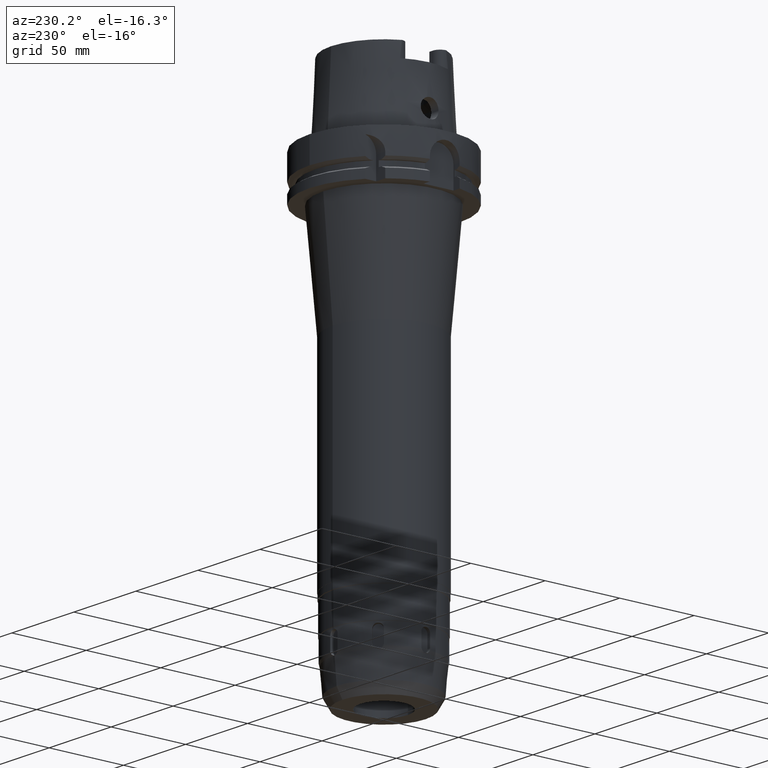
[diagram: clean part render]
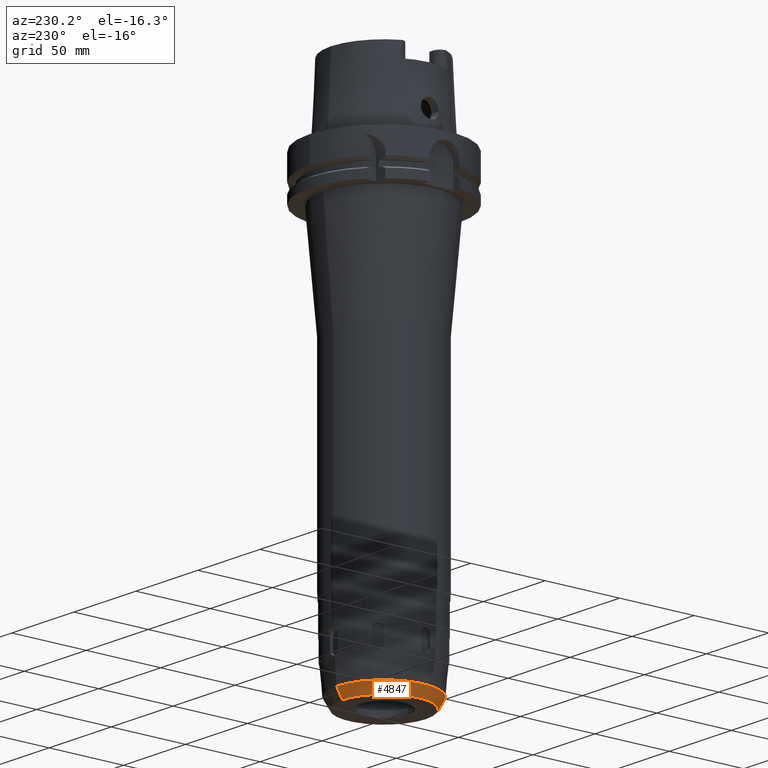
[diagram: same view with one face highlighted and labeled with its STEP entity id]
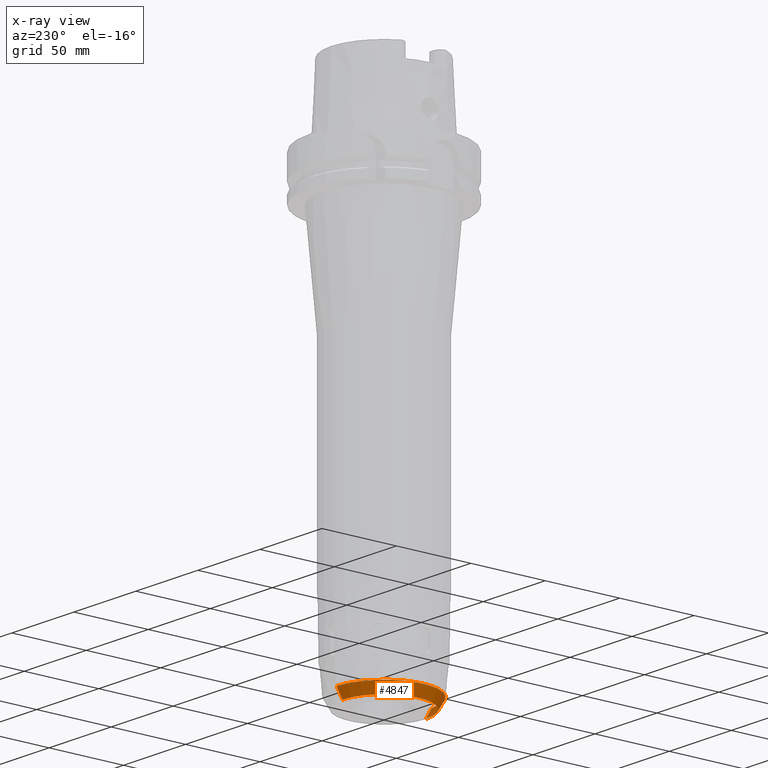
[diagram: x-ray of the same camera — body ghosted, the highlighted face saturated]
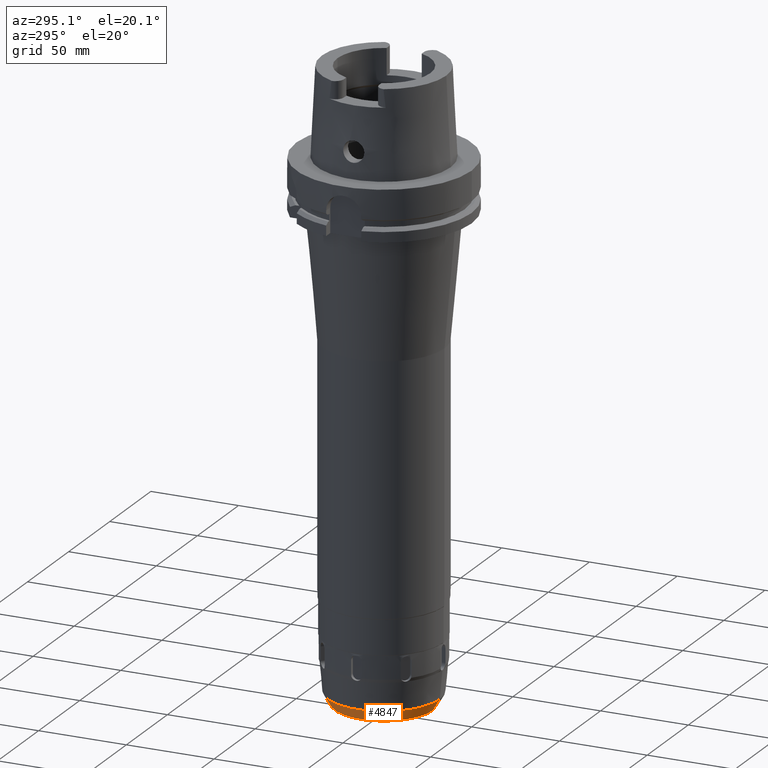
[diagram: same view with one face highlighted and labeled with its STEP entity id]
A machine part, auxiliary view. The second image highlights one B-rep face of the part: STEP entity #4847.
The next image is the same camera in x-ray: the body ghosted, the highlighted face saturated — about 0% of this face is hidden behind the body in this view.
A second angle (auxiliary view) of the same face is appended — the face is thin or edge-on in the first view.
In plain terms, the highlighted conical surface has half-angle 30 deg.
Its self-contained STEP definition (entity closure, byte-faithful):
#1039=CARTESIAN_POINT('',(0.E0,0.E0,-3.E2));
#1040=DIRECTION('',(0.E0,0.E0,1.E0));
#1041=DIRECTION('',(0.E0,1.E0,0.E0));
#1042=AXIS2_PLACEMENT_3D('',#1039,#1040,#1041);
#1063=DIRECTION('',(0.E0,-5.000000000002E-1,-8.660254037843E-1));
#1064=VECTOR('',#1063,7.667211574839E0);
#1065=CARTESIAN_POINT('',(0.E0,3.183360578742E1,-2.9336E2));
#1066=LINE('',#1065,#1064);
#1078=DIRECTION('',(0.E0,5.000000000002E-1,-8.660254037843E-1));
#1079=VECTOR('',#1078,7.667211574839E0);
#1080=CARTESIAN_POINT('',(0.E0,-3.183360578742E1,-2.9336E2));
#1081=LINE('',#1080,#1079);
#1092=CARTESIAN_POINT('',(0.E0,0.E0,-2.9336E2));
#1093=DIRECTION('',(0.E0,0.E0,-1.E0));
#1094=DIRECTION('',(0.E0,-1.E0,0.E0));
#1095=AXIS2_PLACEMENT_3D('',#1092,#1093,#1094);
#3699=CARTESIAN_POINT('',(0.E0,-2.8E1,-3.E2));
#3700=CARTESIAN_POINT('',(0.E0,2.8E1,-3.E2));
#3701=VERTEX_POINT('',#3699);
#3702=VERTEX_POINT('',#3700);
#3703=CARTESIAN_POINT('',(0.E0,3.183360578742E1,-2.9336E2));
#3704=VERTEX_POINT('',#3703);
#3705=CARTESIAN_POINT('',(0.E0,-3.183360578742E1,-2.9336E2));
#3706=VERTEX_POINT('',#3705);
#4835=CARTESIAN_POINT('',(0.E0,0.E0,-2.9668E2));
#4836=DIRECTION('',(0.E0,0.E0,1.E0));
#4837=DIRECTION('',(0.E0,1.E0,0.E0));
#4838=AXIS2_PLACEMENT_3D('',#4835,#4836,#4837);
#4839=CONICAL_SURFACE('',#4838,2.991680289371E1,3.E1);
#4840=ORIENTED_EDGE('',*,*,#4825,.F.);
#4842=ORIENTED_EDGE('',*,*,#4841,.F.);
#4843=ORIENTED_EDGE('',*,*,#4828,.T.);
#4844=ORIENTED_EDGE('',*,*,#4811,.F.);
#4845=EDGE_LOOP('',(#4840,#4842,#4843,#4844));
#4846=FACE_OUTER_BOUND('',#4845,.F.);
#1043=CIRCLE('',#1042,2.8E1);
#1096=CIRCLE('',#1095,3.183360578742E1);
#4811=EDGE_CURVE('',#3702,#3701,#1043,.T.);
#4825=EDGE_CURVE('',#3704,#3702,#1066,.T.);
#4828=EDGE_CURVE('',#3706,#3701,#1081,.T.);
#4841=EDGE_CURVE('',#3706,#3704,#1096,.T.);
#4847=ADVANCED_FACE('',(#4846),#4839,.T.);